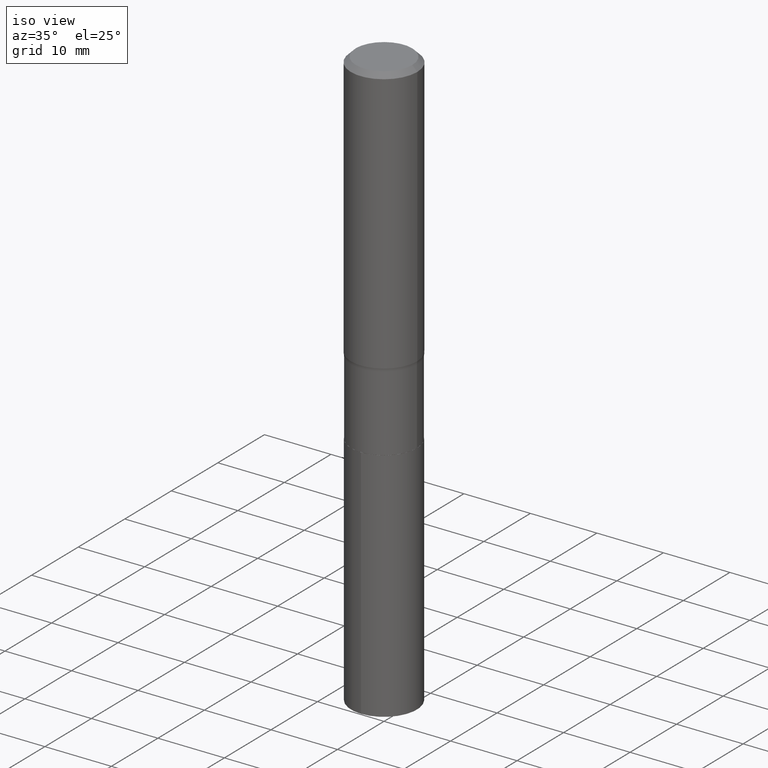
[diagram: clean part render]
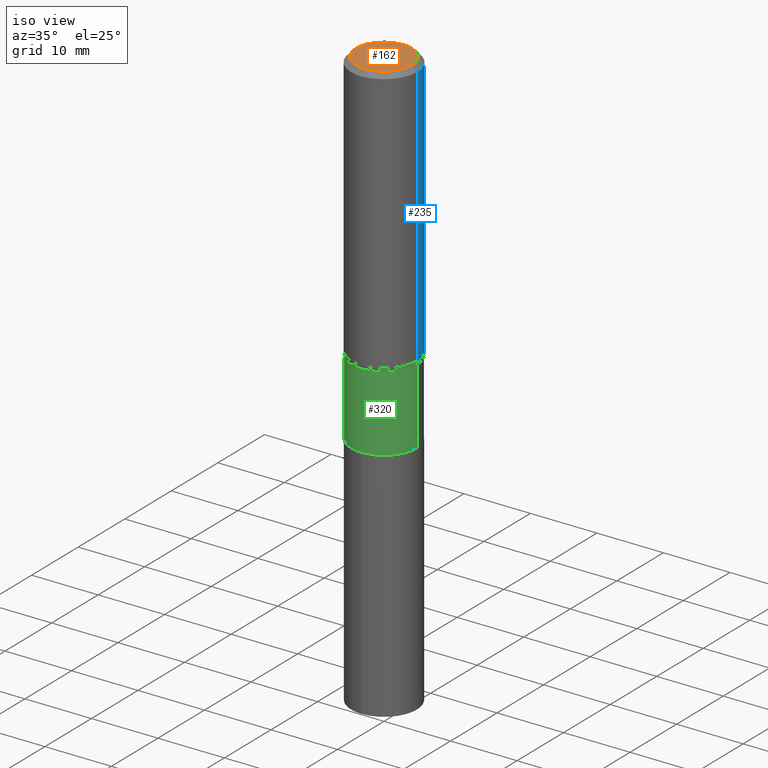
[diagram: same view with three faces highlighted in distinct colors, each labeled with its STEP entity id]
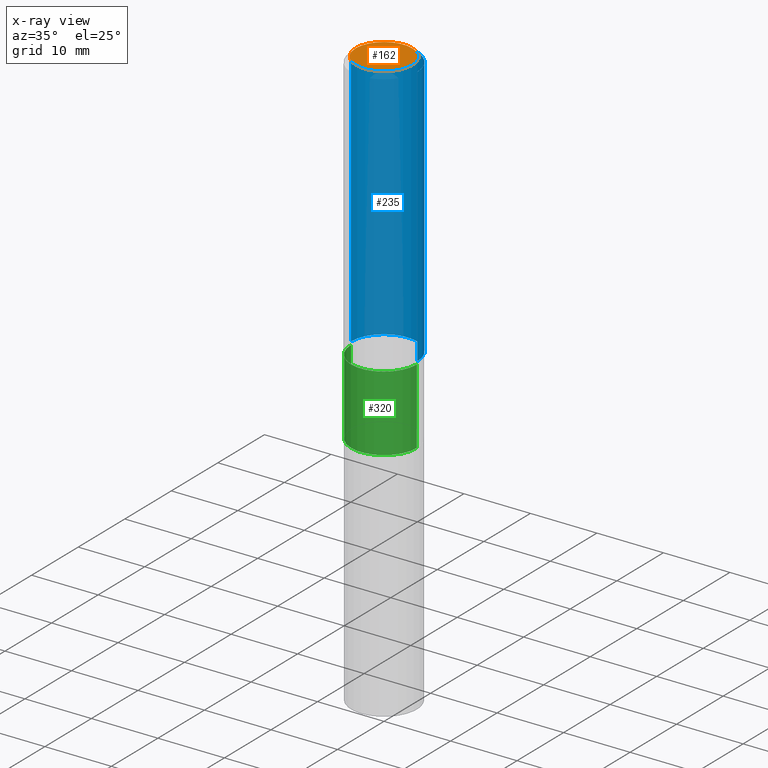
[diagram: x-ray of the same camera — body ghosted, the three highlighted faces saturated]
A machine part, iso view with three faces highlighted in distinct colors.
The next image is the same camera in x-ray (body ghosted, the three faces saturated) — at least one of them is partly hidden behind the body in this view.
Their STEP definitions:

[orange] entity #162 — the highlighted planar face has unit normal (0, -0, -1).
#25 = CARTESIAN_POINT ( 'NONE',  ( -1.001697619218021790E-46, 1.430158722866389718E-32, 4.096137381448108366E-18 ) ) ;
#42 = VERTEX_POINT ( 'NONE', #420 ) ;
#52 = DIRECTION ( 'NONE',  ( 2.438088387897960049E-29, -3.491481338843145188E-15, -1.000000000000000000 ) ) ;
#75 = EDGE_CURVE ( 'NONE', #183, #42, #91, .T. ) ;
#91 = CIRCLE ( 'NONE', #278, 0.1673224999999999851 ) ;
#96 = DIRECTION ( 'NONE',  ( -1.000000000000000000, 6.982962677686265922E-15, -4.876176775795935793E-29 ) ) ;
#122 = DIRECTION ( 'NONE',  ( -2.445468806185136597E-29, 3.491481338843145583E-15, 1.000000000000000000 ) ) ;
#124 = AXIS2_PLACEMENT_3D ( 'NONE', #25, #330, #476 ) ;
#161 = DIRECTION ( 'NONE',  ( 1.000000000000000000, -6.982962677686267499E-15, 4.876294436782262290E-29 ) ) ;
#162 = ADVANCED_FACE ( 'NONE', ( #396 ), #207, .F. ) ;
#183 = VERTEX_POINT ( 'NONE', #394 ) ;
#203 = CIRCLE ( 'NONE', #124, 0.1673224999999999851 ) ;
#207 = PLANE ( 'NONE',  #481 ) ;
#236 = ORIENTED_EDGE ( 'NONE', *, *, #75, .T. ) ;
#278 = AXIS2_PLACEMENT_3D ( 'NONE', #352, #122, #161 ) ;
#280 = ORIENTED_EDGE ( 'NONE', *, *, #341, .T. ) ;
#330 = DIRECTION ( 'NONE',  ( -2.445468806185136597E-29, 3.491481338843145583E-15, 1.000000000000000000 ) ) ;
#339 = EDGE_LOOP ( 'NONE', ( #236, #280 ) ) ;
#341 = EDGE_CURVE ( 'NONE', #42, #183, #203, .T. ) ;
#352 = CARTESIAN_POINT ( 'NONE',  ( -1.001697619218021790E-46, 1.430158722866389718E-32, 4.096137381448108366E-18 ) ) ;
#366 = CARTESIAN_POINT ( 'NONE',  ( -5.008488096090108951E-47, 7.150793614331948590E-33, 2.048068690724054183E-18 ) ) ;
#394 = CARTESIAN_POINT ( 'NONE',  ( -0.1673224999999999851, 1.219954130253505263E-15, 4.096137381439757534E-18 ) ) ;
#396 = FACE_OUTER_BOUND ( 'NONE', #339, .T. ) ;
#420 = CARTESIAN_POINT ( 'NONE',  ( 0.1673224999999999851, -1.300749711163072397E-15, 4.096137381456741925E-18 ) ) ;
#476 = DIRECTION ( 'NONE',  ( 1.000000000000000000, -6.982962677686267499E-15, 4.876294436782262290E-29 ) ) ;
#481 = AXIS2_PLACEMENT_3D ( 'NONE', #366, #52, #96 ) ;

[blue] entity #235 — the highlighted cylindrical surface (partial cylindrical patch) has radius 5 mm, axis along (-0, 0, 1).
#10 = CARTESIAN_POINT ( 'NONE',  ( 0.1968500000000001082, -1.374596203102542397E-15, 9.598753983154305062E-30 ) ) ;
#13 = VECTOR ( 'NONE', #248, 39.37007874015748143 ) ;
#18 = CARTESIAN_POINT ( 'NONE',  ( 7.220858017463212989E-31, -1.030947152326917102E-16, -0.02952750000000020636 ) ) ;
#45 = ORIENTED_EDGE ( 'NONE', *, *, #119, .T. ) ;
#73 = ORIENTED_EDGE ( 'NONE', *, *, #349, .F. ) ;
#81 = VERTEX_POINT ( 'NONE', #316 ) ;
#85 = DIRECTION ( 'NONE',  ( -2.445468806185136877E-29, 3.491481338843145188E-15, 1.000000000000000000 ) ) ;
#95 = ORIENTED_EDGE ( 'NONE', *, *, #141, .F. ) ;
#112 = VERTEX_POINT ( 'NONE', #437 ) ;
#119 = EDGE_CURVE ( 'NONE', #193, #406, #379, .T. ) ;
#127 = CARTESIAN_POINT ( 'NONE',  ( 3.858137931593122664E-29, -5.508398453813880195E-15, -1.577668020886232814 ) ) ;
#141 = EDGE_CURVE ( 'NONE', #81, #112, #425, .T. ) ;
#157 = CARTESIAN_POINT ( 'NONE',  ( 0.1968500000000002470, -6.882994656916424959E-15, -1.577668020886232814 ) ) ;
#193 = VERTEX_POINT ( 'NONE', #157 ) ;
#195 = CARTESIAN_POINT ( 'NONE',  ( 0.000000000000000000, 0.000000000000000000, 0.000000000000000000 ) ) ;
#218 = AXIS2_PLACEMENT_3D ( 'NONE', #18, #243, #441 ) ;
#235 = ADVANCED_FACE ( 'NONE', ( #309 ), #390, .T. ) ;
#243 = DIRECTION ( 'NONE',  ( -2.445468806185136597E-29, 3.491481338843145583E-15, 1.000000000000000000 ) ) ;
#248 = DIRECTION ( 'NONE',  ( -2.445468806185136877E-29, 3.491481338843145188E-15, 1.000000000000000000 ) ) ;
#270 = AXIS2_PLACEMENT_3D ( 'NONE', #127, #399, #359 ) ;
#289 = LINE ( 'NONE', #443, #13 ) ;
#293 = AXIS2_PLACEMENT_3D ( 'NONE', #195, #395, #457 ) ;
#304 = VECTOR ( 'NONE', #85, 39.37007874015748143 ) ;
#309 = FACE_OUTER_BOUND ( 'NONE', #421, .T. ) ;
#316 = CARTESIAN_POINT ( 'NONE',  ( 0.1968500000000000250, -1.477690918335233294E-15, -0.02952750000000020636 ) ) ;
#347 = EDGE_CURVE ( 'NONE', #406, #112, #289, .T. ) ;
#349 = EDGE_CURVE ( 'NONE', #193, #81, #433, .T. ) ;
#355 = CARTESIAN_POINT ( 'NONE',  ( -0.1968500000000002470, -4.109695078470121619E-15, -1.577668020886232814 ) ) ;
#359 = DIRECTION ( 'NONE',  ( 1.000000000000000000, -6.982962677686269866E-15, 0.000000000000000000 ) ) ;
#379 = CIRCLE ( 'NONE', #270, 0.1968500000000002470 ) ;
#390 = CYLINDRICAL_SURFACE ( 'NONE', #293, 0.1968500000000001082 ) ;
#395 = DIRECTION ( 'NONE',  ( -2.445468806185136597E-29, 3.491481338843145583E-15, 1.000000000000000000 ) ) ;
#399 = DIRECTION ( 'NONE',  ( -2.445468806185136597E-29, 3.491481338843145583E-15, 1.000000000000000000 ) ) ;
#406 = VERTEX_POINT ( 'NONE', #355 ) ;
#421 = EDGE_LOOP ( 'NONE', ( #45, #477, #95, #73 ) ) ;
#425 = CIRCLE ( 'NONE', #218, 0.1968500000000000250 ) ;
#433 = LINE ( 'NONE', #10, #304 ) ;
#437 = CARTESIAN_POINT ( 'NONE',  ( -0.1968500000000000250, -1.407043209179527561E-15, -0.02952750000000020636 ) ) ;
#441 = DIRECTION ( 'NONE',  ( 1.000000000000000000, -6.982962677686265922E-15, 0.000000000000000000 ) ) ;
#443 = CARTESIAN_POINT ( 'NONE',  ( -0.1968500000000001082, 1.398703375343757985E-15, -9.682923725166787881E-30 ) ) ;
#457 = DIRECTION ( 'NONE',  ( 1.000000000000000000, -6.982962677686266711E-15, 4.876176775795935793E-29 ) ) ;
#477 = ORIENTED_EDGE ( 'NONE', *, *, #347, .T. ) ;

[green] entity #320 — the highlighted cylindrical surface (partial cylindrical patch) has radius 4.9505 mm, axis along (-0, 0, 1).
#8 = EDGE_CURVE ( 'NONE', #134, #32, #140, .T. ) ;
#32 = VERTEX_POINT ( 'NONE', #303 ) ;
#53 = CARTESIAN_POINT ( 'NONE',  ( 0.000000000000000000, 0.000000000000000000, 0.000000000000000000 ) ) ;
#56 = CARTESIAN_POINT ( 'NONE',  ( -0.1948999999999999344, 1.384847791996434796E-15, -9.587004490906808522E-30 ) ) ;
#65 = DIRECTION ( 'NONE',  ( 1.000000000000000000, -6.982962677686264344E-15, 0.000000000000000000 ) ) ;
#74 = ORIENTED_EDGE ( 'NONE', *, *, #8, .T. ) ;
#93 = CARTESIAN_POINT ( 'NONE',  ( -0.1948999999999999899, -4.965807615225361547E-15, -2.042799999999999727 ) ) ;
#98 = VERTEX_POINT ( 'NONE', #234 ) ;
#100 = VECTOR ( 'NONE', #210, 39.37007874015748143 ) ;
#104 = DIRECTION ( 'NONE',  ( -2.445468806185136877E-29, 3.491481338843145188E-15, 1.000000000000000000 ) ) ;
#132 = CARTESIAN_POINT ( 'NONE',  ( 0.1948999999999999344, -1.360979425881052894E-15, 9.503668536026277414E-30 ) ) ;
#134 = VERTEX_POINT ( 'NONE', #93 ) ;
#136 = DIRECTION ( 'NONE',  ( 1.000000000000000000, -6.982962677686266711E-15, 4.876176775795936914E-29 ) ) ;
#140 = CIRCLE ( 'NONE', #164, 0.1948999999999999899 ) ;
#156 = EDGE_CURVE ( 'NONE', #134, #98, #240, .T. ) ;
#164 = AXIS2_PLACEMENT_3D ( 'NONE', #335, #290, #65 ) ;
#170 = ORIENTED_EDGE ( 'NONE', *, *, #156, .F. ) ;
#180 = EDGE_CURVE ( 'NONE', #32, #461, #469, .T. ) ;
#208 = DIRECTION ( 'NONE',  ( -2.445468806185136597E-29, 3.491481338843145583E-15, 1.000000000000000000 ) ) ;
#210 = DIRECTION ( 'NONE',  ( -2.445468806185136877E-29, 3.491481338843145188E-15, 1.000000000000000000 ) ) ;
#212 = AXIS2_PLACEMENT_3D ( 'NONE', #53, #369, #136 ) ;
#232 = ORIENTED_EDGE ( 'NONE', *, *, #180, .T. ) ;
#234 = CARTESIAN_POINT ( 'NONE',  ( -0.1948999999999999067, -4.965807615225362336E-15, -1.594999999999999751 ) ) ;
#240 = LINE ( 'NONE', #56, #100 ) ;
#249 = EDGE_LOOP ( 'NONE', ( #170, #74, #232, #282 ) ) ;
#260 = VECTOR ( 'NONE', #104, 39.37007874015748143 ) ;
#262 = AXIS2_PLACEMENT_3D ( 'NONE', #404, #208, #378 ) ;
#282 = ORIENTED_EDGE ( 'NONE', *, *, #445, .F. ) ;
#290 = DIRECTION ( 'NONE',  ( -2.445468806185136597E-29, 3.491481338843145583E-15, 1.000000000000000000 ) ) ;
#299 = CARTESIAN_POINT ( 'NONE',  ( 0.1948999999999999067, -6.929892161335869568E-15, -1.594999999999999751 ) ) ;
#303 = CARTESIAN_POINT ( 'NONE',  ( 0.1948999999999999899, -8.493377504869830484E-15, -2.042799999999999727 ) ) ;
#320 = ADVANCED_FACE ( 'NONE', ( #398 ), #472, .T. ) ;
#335 = CARTESIAN_POINT ( 'NONE',  ( 4.995603677274996933E-29, -7.132398078988777393E-15, -2.042799999999999727 ) ) ;
#369 = DIRECTION ( 'NONE',  ( -2.445468806185136597E-29, 3.491481338843145583E-15, 1.000000000000000000 ) ) ;
#378 = DIRECTION ( 'NONE',  ( 1.000000000000000000, -6.982962677686267499E-15, 0.000000000000000000 ) ) ;
#398 = FACE_OUTER_BOUND ( 'NONE', #249, .T. ) ;
#404 = CARTESIAN_POINT ( 'NONE',  ( 3.900522745865292334E-29, -5.568912735454817265E-15, -1.594999999999999751 ) ) ;
#445 = EDGE_CURVE ( 'NONE', #98, #461, #490, .T. ) ;
#461 = VERTEX_POINT ( 'NONE', #299 ) ;
#469 = LINE ( 'NONE', #132, #260 ) ;
#472 = CYLINDRICAL_SURFACE ( 'NONE', #212, 0.1948999999999999344 ) ;
#490 = CIRCLE ( 'NONE', #262, 0.1948999999999999067 ) ;